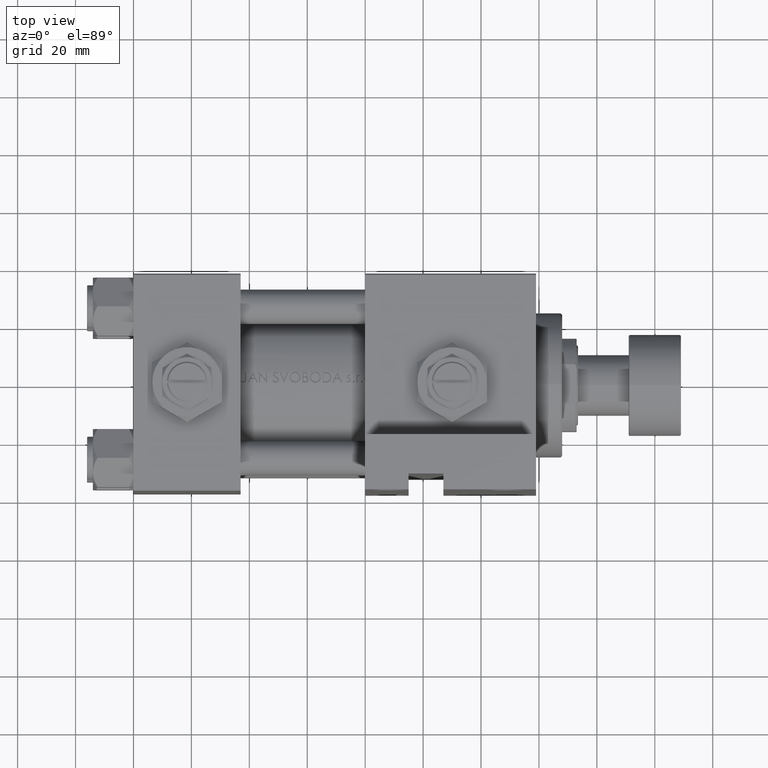
[diagram: clean part render]
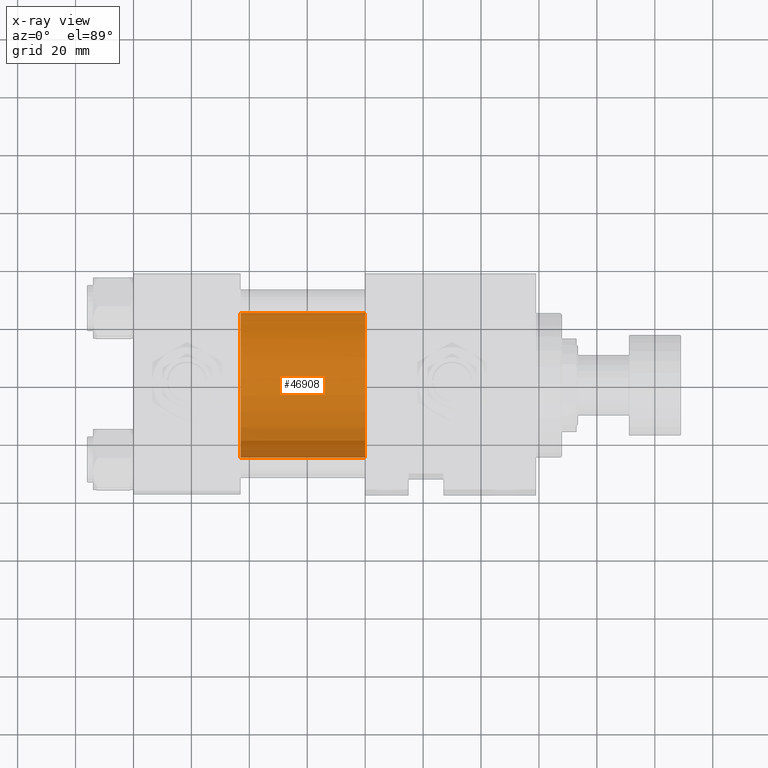
[diagram: x-ray — body ghosted, one internal face saturated and labeled with its STEP entity id]
A machine part, top view, then the same camera in x-ray: the body is ghosted and one INTERNAL B-rep face — a face not visible from any outside direction — is saturated and labeled: STEP entity #46908.
In plain terms, the highlighted cylindrical surface (partial cylindrical patch) has radius 25 mm, axis along (-1, -0, 0).
Its self-contained STEP definition (entity closure, byte-faithful):
#248 = CARTESIAN_POINT ( 'NONE',  ( 37.00000000000000000, 3.122849337825750617E-15, -25.50000000000000355 ) ) ;
#1021 = DIRECTION ( 'NONE',  ( 1.000000000000000000, 0.000000000000000000, 0.000000000000000000 ) ) ;
#2027 = CYLINDRICAL_SURFACE ( 'NONE', #17455, 25.00000000000000000 ) ;
#2279 = FACE_OUTER_BOUND ( 'NONE', #19081, .T. ) ;
#2808 = LINE ( 'NONE', #36279, #25345 ) ;
#5153 = CIRCLE ( 'NONE', #39443, 25.00000000000000000 ) ;
#7883 = VERTEX_POINT ( 'NONE', #17244 ) ;
#10742 = CARTESIAN_POINT ( 'NONE',  ( 79.99999999999998579, 6.123233995736772199E-17, -0.5000000000000004441 ) ) ;
#11840 = AXIS2_PLACEMENT_3D ( 'NONE', #10742, #26003, #49188 ) ;
#13141 = ORIENTED_EDGE ( 'NONE', *, *, #26307, .T. ) ;
#13216 = CARTESIAN_POINT ( 'NONE',  ( 79.99999999999998579, 6.123233995736772199E-17, 24.50000000000000000 ) ) ;
#17244 = CARTESIAN_POINT ( 'NONE',  ( 79.99999999999998579, 3.122849337825750617E-15, -25.50000000000000355 ) ) ;
#17455 = AXIS2_PLACEMENT_3D ( 'NONE', #36749, #29252, #32504 ) ;
#19081 = EDGE_LOOP ( 'NONE', ( #35322, #32381, #13141, #20784 ) ) ;
#20784 = ORIENTED_EDGE ( 'NONE', *, *, #30794, .F. ) ;
#20945 = VECTOR ( 'NONE', #28469, 1000.000000000000000 ) ;
#25345 = VECTOR ( 'NONE', #36527, 1000.000000000000000 ) ;
#26003 = DIRECTION ( 'NONE',  ( 1.000000000000000000, 0.000000000000000000, 0.000000000000000000 ) ) ;
#26307 = EDGE_CURVE ( 'NONE', #38510, #46916, #40689, .T. ) ;
#27248 = DIRECTION ( 'NONE',  ( 0.000000000000000000, 0.000000000000000000, -1.000000000000000000 ) ) ;
#28469 = DIRECTION ( 'NONE',  ( -1.000000000000000000, -0.000000000000000000, -0.000000000000000000 ) ) ;
#29252 = DIRECTION ( 'NONE',  ( -1.000000000000000000, -0.000000000000000000, -0.000000000000000000 ) ) ;
#30794 = EDGE_CURVE ( 'NONE', #35246, #46916, #5153, .T. ) ;
#32381 = ORIENTED_EDGE ( 'NONE', *, *, #42581, .T. ) ;
#32504 = DIRECTION ( 'NONE',  ( 0.000000000000000000, 0.000000000000000000, 1.000000000000000000 ) ) ;
#35246 = VERTEX_POINT ( 'NONE', #248 ) ;
#35322 = ORIENTED_EDGE ( 'NONE', *, *, #44710, .F. ) ;
#36279 = CARTESIAN_POINT ( 'NONE',  ( 79.99999999999998579, 3.122849337825750617E-15, -25.50000000000000355 ) ) ;
#36527 = DIRECTION ( 'NONE',  ( -1.000000000000000000, -0.000000000000000000, -0.000000000000000000 ) ) ;
#36749 = CARTESIAN_POINT ( 'NONE',  ( 79.99999999999998579, 6.123233995736772199E-17, -0.5000000000000004441 ) ) ;
#38238 = CARTESIAN_POINT ( 'NONE',  ( 37.00000000000000000, 6.123233995736772199E-17, -0.5000000000000004441 ) ) ;
#38510 = VERTEX_POINT ( 'NONE', #46958 ) ;
#39443 = AXIS2_PLACEMENT_3D ( 'NONE', #38238, #1021, #27248 ) ;
#40689 = LINE ( 'NONE', #13216, #20945 ) ;
#40963 = CARTESIAN_POINT ( 'NONE',  ( 37.00000000000000000, 6.123233995736772199E-17, 24.50000000000000000 ) ) ;
#42581 = EDGE_CURVE ( 'NONE', #7883, #38510, #49314, .T. ) ;
#44710 = EDGE_CURVE ( 'NONE', #7883, #35246, #2808, .T. ) ;
#46908 = ADVANCED_FACE ( 'NONE', ( #2279 ), #2027, .F. ) ;
#46916 = VERTEX_POINT ( 'NONE', #40963 ) ;
#46958 = CARTESIAN_POINT ( 'NONE',  ( 79.99999999999998579, 6.123233995736772199E-17, 24.50000000000000000 ) ) ;
#49188 = DIRECTION ( 'NONE',  ( 0.000000000000000000, 0.000000000000000000, -1.000000000000000000 ) ) ;
#49314 = CIRCLE ( 'NONE', #11840, 25.00000000000000000 ) ;